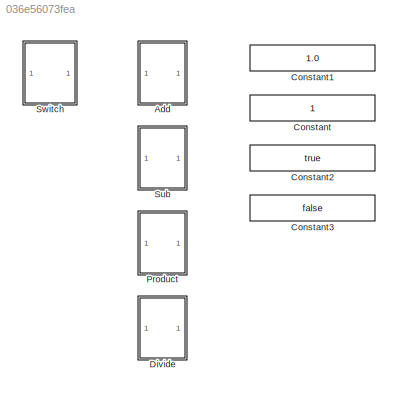
MODEL slx_036e56073fea
KIND library
CONFIG AbsTol = auto
CONFIG EnableMultiTasking = off
CONFIG FixedStep = auto
CONFIG MaxStep = auto
CONFIG MinStep = auto
CONFIG RelTol = 1e-3
CONFIG SampleTimeConstraint = Unconstrained
CONFIG SolverName = VariableStepAuto
CONFIG StartTime = 0.0
CONFIG StopTime = 10.0
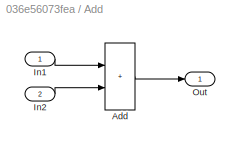
BLOCK [SubSystem] Add
BLOCK [Sum] Add/Add
  IconShape = rectangular
BLOCK [Inport] Add/In1
BLOCK [Inport] Add/In2
  Port = 2
BLOCK [Outport] Add/Out
BLOCK [Constant] Constant
BLOCK [Constant] Constant1
  OutDataTypeStr = single
  Value = 1.0
BLOCK [Constant] Constant2
  OutDataTypeStr = boolean
  Value = true
BLOCK [Constant] Constant3
  OutDataTypeStr = boolean
  Value = false
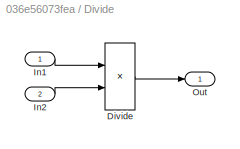
BLOCK [SubSystem] Divide
BLOCK [Product] Divide/Divide
  Inputs = */
BLOCK [Inport] Divide/In1
BLOCK [Inport] Divide/In2
  Port = 2
BLOCK [Outport] Divide/Out
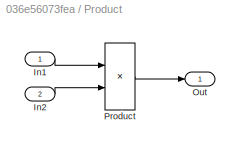
BLOCK [SubSystem] Product
BLOCK [Inport] Product/In1
BLOCK [Inport] Product/In2
  Port = 2
BLOCK [Outport] Product/Out
BLOCK [Product] Product/Product
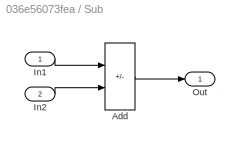
BLOCK [SubSystem] Sub
BLOCK [Sum] Sub/Add
  IconShape = rectangular
  Inputs = +-
BLOCK [Inport] Sub/In1
BLOCK [Inport] Sub/In2
  Port = 2
BLOCK [Outport] Sub/Out
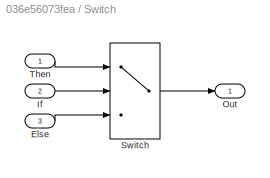
BLOCK [SubSystem] Switch
BLOCK [Inport] Switch/Else
  Port = 3
BLOCK [Inport] Switch/If
  Port = 2
BLOCK [Outport] Switch/Out
BLOCK [Switch] Switch/Switch
  Criteria = u2 ~= 0
  InputSameDT = off
  SaturateOnIntegerOverflow = off
BLOCK [Inport] Switch/Then
LINE Add/Add:1 -> Add/Out:1
LINE Add/In1:1 -> Add/Add:1
LINE Add/In2:1 -> Add/Add:2
LINE Divide/Divide:1 -> Divide/Out:1
LINE Divide/In1:1 -> Divide/Divide:1
LINE Divide/In2:1 -> Divide/Divide:2
LINE Product/In1:1 -> Product/Product:1
LINE Product/In2:1 -> Product/Product:2
LINE Product/Product:1 -> Product/Out:1
LINE Sub/Add:1 -> Sub/Out:1
LINE Sub/In1:1 -> Sub/Add:1
LINE Sub/In2:1 -> Sub/Add:2
LINE Switch/Else:1 -> Switch/Switch:3
LINE Switch/If:1 -> Switch/Switch:2
LINE Switch/Switch:1 -> Switch/Out:1
LINE Switch/Then:1 -> Switch/Switch:1
